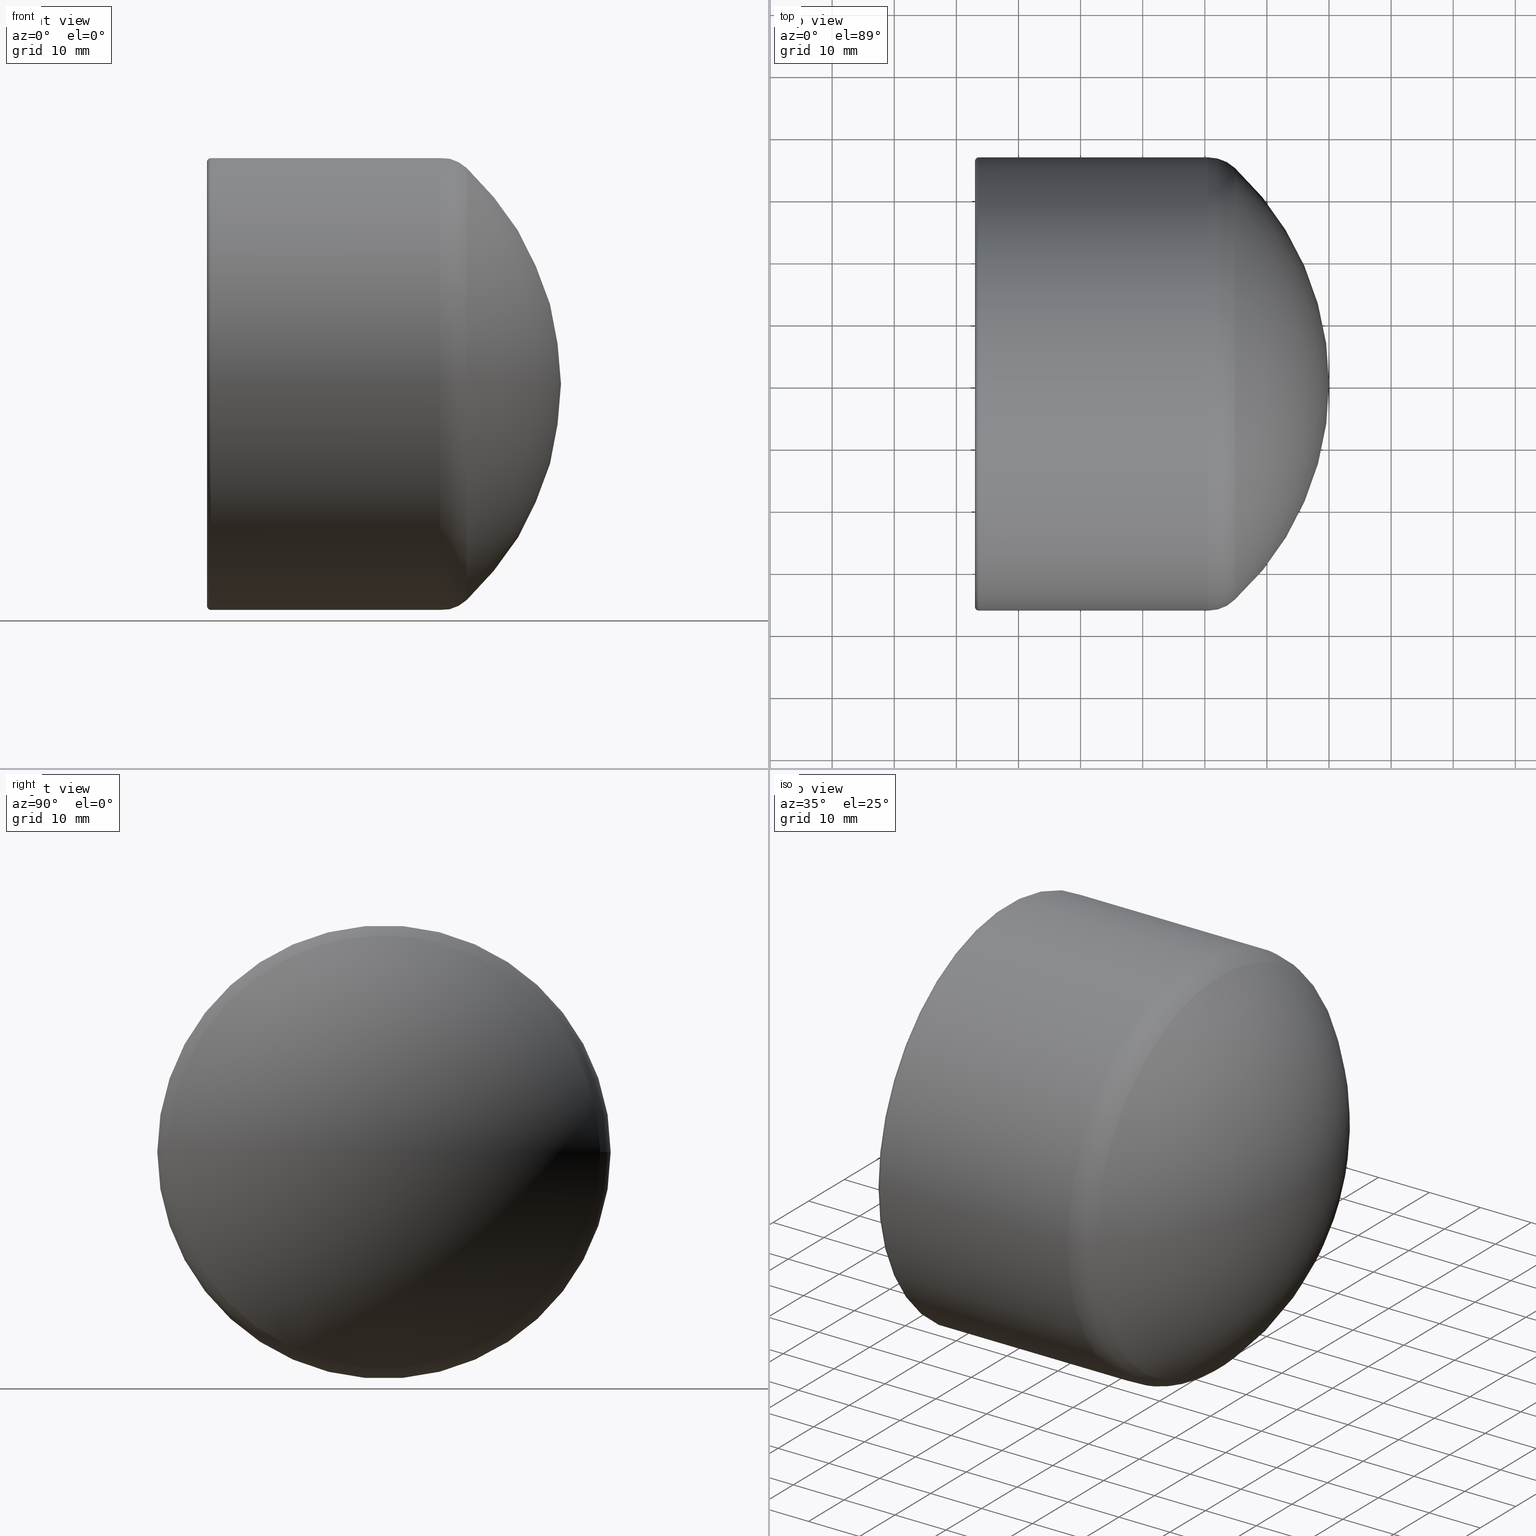
[diagram: canonical four-view strip — front | top / right | iso, engineering-drawing reading convention]
A machine part, canonical four-view strip (front | top / right | iso — engineering-drawing reading convention). The complete STEP part file that produces these views, byte-faithful:
ISO-10303-21;
HEADER;
/* Generated by software containing ST-Developer
 * from STEP Tools, Inc. (www.steptools.com) 
 */

FILE_DESCRIPTION(
/* description */ ('PLASSON CAP-CEMENT PVC 63'),
/* implementation_level */ '2;1');

FILE_NAME(
/* name */ 
'C:\\Dropbox\\KIMPROJECTS-Inventor\\99-16-3568-Processing\\PVC Catalog
 2017\\050700\\050700063.ipt.stp',
/* time_stamp */ '2017-12-07T15:56:56+02:00',
/* author */ ('KIM'),
/* organization */ (''),
/* preprocessor_version */ 'ST-DEVELOPER v15.6',
/* originating_system */ 'Autodesk Inventor 2015',
/* authorisation */ '');

FILE_SCHEMA (('AUTOMOTIVE_DESIGN { 1 0 10303 214 3 1 1 }'));
ENDSEC;

DATA;
#10=MECHANICAL_DESIGN_GEOMETRIC_PRESENTATION_REPRESENTATION('',(#13),#189);
#11=SHAPE_REPRESENTATION_RELATIONSHIP('SRR','None',#198,#12);
#12=ADVANCED_BREP_SHAPE_REPRESENTATION($,(#14),#188);
#13=STYLED_ITEM('',(#207),#14);
#14=MANIFOLD_SOLID_BREP('Solid1',#105);
#15=PLANE('',#116);
#16=PLANE('',#123);
#17=SPHERICAL_SURFACE('',#112,47.5046783625731);
#18=SPHERICAL_SURFACE('',#121,40.2024773932372);
#19=CYLINDRICAL_SURFACE('',#110,36.5);
#20=CYLINDRICAL_SURFACE('',#118,31.5);
#21=FACE_BOUND('',#38,.T.);
#22=FACE_BOUND('',#40,.T.);
#23=FACE_BOUND('',#43,.T.);
#24=FACE_BOUND('',#45,.T.);
#25=FACE_BOUND('',#47,.T.);
#26=FACE_BOUND('',#49,.T.);
#27=FACE_BOUND('',#52,.T.);
#28=FACE_OUTER_BOUND('',#37,.T.);
#29=FACE_OUTER_BOUND('',#39,.T.);
#30=FACE_OUTER_BOUND('',#41,.T.);
#31=FACE_OUTER_BOUND('',#42,.T.);
#32=FACE_OUTER_BOUND('',#44,.T.);
#33=FACE_OUTER_BOUND('',#46,.T.);
#34=FACE_OUTER_BOUND('',#48,.T.);
#35=FACE_OUTER_BOUND('',#50,.T.);
#36=FACE_OUTER_BOUND('',#51,.T.);
#37=EDGE_LOOP('',(#77));
#38=EDGE_LOOP('',(#78));
#39=EDGE_LOOP('',(#79));
#40=EDGE_LOOP('',(#80));
#41=EDGE_LOOP('',(#81));
#42=EDGE_LOOP('',(#82));
#43=EDGE_LOOP('',(#83));
#44=EDGE_LOOP('',(#84));
#45=EDGE_LOOP('',(#85));
#46=EDGE_LOOP('',(#86));
#47=EDGE_LOOP('',(#87));
#48=EDGE_LOOP('',(#88));
#49=EDGE_LOOP('',(#89));
#50=EDGE_LOOP('',(#90));
#51=EDGE_LOOP('',(#91));
#52=EDGE_LOOP('',(#92));
#53=CIRCLE('',#108,36.5);
#54=CIRCLE('',#109,34.8174368435992);
#55=CIRCLE('',#111,36.5);
#56=CIRCLE('',#114,31.5);
#57=CIRCLE('',#115,32.13);
#58=CIRCLE('',#117,35.87);
#59=CIRCLE('',#119,31.5);
#60=CIRCLE('',#122,28.35);
#61=VERTEX_POINT('',#162);
#62=VERTEX_POINT('',#164);
#63=VERTEX_POINT('',#167);
#64=VERTEX_POINT('',#171);
#65=VERTEX_POINT('',#173);
#66=VERTEX_POINT('',#176);
#67=VERTEX_POINT('',#179);
#68=VERTEX_POINT('',#183);
#69=EDGE_CURVE('',#61,#61,#53,.T.);
#70=EDGE_CURVE('',#62,#62,#54,.T.);
#71=EDGE_CURVE('',#63,#63,#55,.T.);
#72=EDGE_CURVE('',#64,#64,#56,.T.);
#73=EDGE_CURVE('',#65,#65,#57,.T.);
#74=EDGE_CURVE('',#66,#66,#58,.T.);
#75=EDGE_CURVE('',#67,#67,#59,.T.);
#76=EDGE_CURVE('',#68,#68,#60,.T.);
#77=ORIENTED_EDGE('',*,*,#69,.T.);
#78=ORIENTED_EDGE('',*,*,#70,.T.);
#79=ORIENTED_EDGE('',*,*,#71,.F.);
#80=ORIENTED_EDGE('',*,*,#69,.F.);
#81=ORIENTED_EDGE('',*,*,#70,.F.);
#82=ORIENTED_EDGE('',*,*,#72,.T.);
#83=ORIENTED_EDGE('',*,*,#73,.T.);
#84=ORIENTED_EDGE('',*,*,#74,.F.);
#85=ORIENTED_EDGE('',*,*,#73,.F.);
#86=ORIENTED_EDGE('',*,*,#75,.T.);
#87=ORIENTED_EDGE('',*,*,#72,.F.);
#88=ORIENTED_EDGE('',*,*,#74,.T.);
#89=ORIENTED_EDGE('',*,*,#71,.T.);
#90=ORIENTED_EDGE('',*,*,#76,.F.);
#91=ORIENTED_EDGE('',*,*,#75,.F.);
#92=ORIENTED_EDGE('',*,*,#76,.T.);
#93=TOROIDAL_SURFACE('',#107,30.2,6.3);
#94=TOROIDAL_SURFACE('',#113,32.13,0.63);
#95=TOROIDAL_SURFACE('',#120,35.87,0.63);
#96=ADVANCED_FACE('',(#28,#21),#93,.T.);
#97=ADVANCED_FACE('',(#29,#22),#19,.T.);
#98=ADVANCED_FACE('',(#30),#17,.T.);
#99=ADVANCED_FACE('',(#31,#23),#94,.T.);
#100=ADVANCED_FACE('',(#32,#24),#15,.T.);
#101=ADVANCED_FACE('',(#33,#25),#20,.F.);
#102=ADVANCED_FACE('',(#34,#26),#95,.T.);
#103=ADVANCED_FACE('',(#35),#18,.F.);
#104=ADVANCED_FACE('',(#36,#27),#16,.T.);
#105=CLOSED_SHELL('',(#96,#97,#98,#99,#100,#101,#102,#103,#104));
#106=AXIS2_PLACEMENT_3D('placement',#160,#124,#125);
#107=AXIS2_PLACEMENT_3D('',#161,#126,#127);
#108=AXIS2_PLACEMENT_3D('',#163,#128,#129);
#109=AXIS2_PLACEMENT_3D('',#165,#130,#131);
#110=AXIS2_PLACEMENT_3D('',#166,#132,#133);
#111=AXIS2_PLACEMENT_3D('',#168,#134,#135);
#112=AXIS2_PLACEMENT_3D('',#169,#136,#137);
#113=AXIS2_PLACEMENT_3D('',#170,#138,#139);
#114=AXIS2_PLACEMENT_3D('',#172,#140,#141);
#115=AXIS2_PLACEMENT_3D('',#174,#142,#143);
#116=AXIS2_PLACEMENT_3D('',#175,#144,#145);
#117=AXIS2_PLACEMENT_3D('',#177,#146,#147);
#118=AXIS2_PLACEMENT_3D('',#178,#148,#149);
#119=AXIS2_PLACEMENT_3D('',#180,#150,#151);
#120=AXIS2_PLACEMENT_3D('',#181,#152,#153);
#121=AXIS2_PLACEMENT_3D('',#182,#154,#155);
#122=AXIS2_PLACEMENT_3D('',#184,#156,#157);
#123=AXIS2_PLACEMENT_3D('',#185,#158,#159);
#124=DIRECTION('axis',(0.,0.,1.));
#125=DIRECTION('refdir',(1.,0.,0.));
#126=DIRECTION('center_axis',(1.,1.2277497043788E-16,0.));
#127=DIRECTION('ref_axis',(0.,0.,-1.));
#128=DIRECTION('center_axis',(1.,1.2277497043788E-16,0.));
#129=DIRECTION('ref_axis',(1.2166827667125E-16,-1.,1.83697019872103E-16));
#130=DIRECTION('center_axis',(-1.,-1.2277497043788E-16,0.));
#131=DIRECTION('ref_axis',(1.2166827667125E-16,-1.,1.83697019872103E-16));
#132=DIRECTION('center_axis',(1.,1.2277497043788E-16,0.));
#133=DIRECTION('ref_axis',(-1.2166827667125E-16,1.,0.));
#134=DIRECTION('center_axis',(-1.,-1.2277497043788E-16,0.));
#135=DIRECTION('ref_axis',(1.2166827667125E-16,-1.,1.83697019872103E-16));
#136=DIRECTION('center_axis',(0.,0.,1.));
#137=DIRECTION('ref_axis',(1.,0.,0.));
#138=DIRECTION('center_axis',(1.,1.2277497043788E-16,0.));
#139=DIRECTION('ref_axis',(0.,0.,-1.));
#140=DIRECTION('center_axis',(1.,1.2277497043788E-16,0.));
#141=DIRECTION('ref_axis',(1.2335811384724E-16,-1.,1.83697019872103E-16));
#142=DIRECTION('center_axis',(-1.,-1.2277497043788E-16,0.));
#143=DIRECTION('ref_axis',(1.2277497043788E-16,-1.,1.83697019872103E-16));
#144=DIRECTION('center_axis',(-1.,-1.2277497043788E-16,0.));
#145=DIRECTION('ref_axis',(0.,0.,1.));
#146=DIRECTION('center_axis',(1.,1.2277497043788E-16,0.));
#147=DIRECTION('ref_axis',(1.2277497043788E-16,-1.,1.83697019872103E-16));
#148=DIRECTION('center_axis',(1.,1.2277497043788E-16,0.));
#149=DIRECTION('ref_axis',(-1.2166827667125E-16,1.,0.));
#150=DIRECTION('center_axis',(1.,1.2277497043788E-16,0.));
#151=DIRECTION('ref_axis',(0.,0.,-1.));
#152=DIRECTION('center_axis',(1.,1.2277497043788E-16,0.));
#153=DIRECTION('ref_axis',(0.,0.,-1.));
#154=DIRECTION('center_axis',(0.,0.,1.));
#155=DIRECTION('ref_axis',(1.,0.,0.));
#156=DIRECTION('center_axis',(1.,1.2277497043788E-16,0.));
#157=DIRECTION('ref_axis',(0.,0.,-1.));
#158=DIRECTION('center_axis',(-1.,-1.2277497043788E-16,0.));
#159=DIRECTION('ref_axis',(0.,0.,1.));
#160=CARTESIAN_POINT('',(0.,0.,0.));
#161=CARTESIAN_POINT('Origin',(-19.4728122284196,-2.3907739456866E-15,0.));
#162=CARTESIAN_POINT('',(-19.4728122284196,36.5,-2.23498040844392E-15));
#163=CARTESIAN_POINT('Origin',(-19.4728122284196,-2.3907739456866E-15,0.));
#164=CARTESIAN_POINT('',(-15.1868727753507,34.8174368435992,-1.06597656462572E-14));
#165=CARTESIAN_POINT('Origin',(-15.1868727753507,-1.86682157061912E-15,
0.));
#166=CARTESIAN_POINT('Origin',(-37.05,-4.54881265472344E-15,0.));
#167=CARTESIAN_POINT('',(-56.37,36.5,-1.11749020422196E-14));
#168=CARTESIAN_POINT('Origin',(-56.37,-6.92082508358327E-15,0.));
#169=CARTESIAN_POINT('Origin',(-47.5046783625731,-5.81764523012497E-15,
0.));
#170=CARTESIAN_POINT('Origin',(-56.37,-6.92082508358327E-15,0.));
#171=CARTESIAN_POINT('',(-56.37,31.5,-1.92881870865708E-15));
#172=CARTESIAN_POINT('Origin',(-56.37,-6.92082508358327E-15,0.));
#173=CARTESIAN_POINT('',(-57.,32.13,-9.83697541415112E-15));
#174=CARTESIAN_POINT('Origin',(-57.,-6.99817331495913E-15,0.));
#175=CARTESIAN_POINT('Origin',(-57.,36.5,0.));
#176=CARTESIAN_POINT('',(-57.,35.87,-2.19640403427078E-15));
#177=CARTESIAN_POINT('Origin',(-57.,-6.99817331495913E-15,0.));
#178=CARTESIAN_POINT('Origin',(-38.,-4.66544887663942E-15,0.));
#179=CARTESIAN_POINT('',(-19.,31.5,0.));
#180=CARTESIAN_POINT('Origin',(-19.,-2.33272443831971E-15,0.));
#181=CARTESIAN_POINT('Origin',(-56.37,-6.92082508358327E-15,0.));
#182=CARTESIAN_POINT('Origin',(-47.5046783625731,-5.81764523012497E-15,
0.));
#183=CARTESIAN_POINT('',(-19.,28.35,0.));
#184=CARTESIAN_POINT('Origin',(-19.,-2.33272443831971E-15,0.));
#185=CARTESIAN_POINT('Origin',(-19.,31.5,0.));
#186=UNCERTAINTY_MEASURE_WITH_UNIT(LENGTH_MEASURE(0.01),#190,
'DISTANCE_ACCURACY_VALUE',
'Maximum model space distance between geometric entities at asserted c
onnectivities');
#187=UNCERTAINTY_MEASURE_WITH_UNIT(LENGTH_MEASURE(1.E-6),#190,
'DISTANCE_ACCURACY_VALUE',
'Maximum model space distance between geometric entities at asserted c
onnectivities');
#188=(
GEOMETRIC_REPRESENTATION_CONTEXT(3)
GLOBAL_UNCERTAINTY_ASSIGNED_CONTEXT((#186))
GLOBAL_UNIT_ASSIGNED_CONTEXT((#190,#193,#191))
REPRESENTATION_CONTEXT('','3D')
);
#189=(
GEOMETRIC_REPRESENTATION_CONTEXT(3)
GLOBAL_UNCERTAINTY_ASSIGNED_CONTEXT((#187))
GLOBAL_UNIT_ASSIGNED_CONTEXT((#190,#193,#191))
REPRESENTATION_CONTEXT('','3D')
);
#190=(
LENGTH_UNIT()
NAMED_UNIT(*)
SI_UNIT(.MILLI.,.METRE.)
);
#191=(
NAMED_UNIT(*)
SI_UNIT($,.STERADIAN.)
SOLID_ANGLE_UNIT()
);
#192=DIMENSIONAL_EXPONENTS(0.,0.,0.,0.,0.,0.,0.);
#193=(
CONVERSION_BASED_UNIT('degree',#195)
NAMED_UNIT(#192)
PLANE_ANGLE_UNIT()
);
#194=(
NAMED_UNIT(*)
PLANE_ANGLE_UNIT()
SI_UNIT($,.RADIAN.)
);
#195=PLANE_ANGLE_MEASURE_WITH_UNIT(PLANE_ANGLE_MEASURE(0.01745329252),#194);
#196=SHAPE_DEFINITION_REPRESENTATION(#197,#198);
#197=PRODUCT_DEFINITION_SHAPE('',$,#200);
#198=SHAPE_REPRESENTATION('',(#106),#188);
#199=PRODUCT_DEFINITION_CONTEXT('part definition',#204,'design');
#200=PRODUCT_DEFINITION('050700063','050700063',#201,#199);
#201=PRODUCT_DEFINITION_FORMATION('',$,#206);
#202=PRODUCT_RELATED_PRODUCT_CATEGORY('050700063','050700063',(#206));
#203=APPLICATION_PROTOCOL_DEFINITION('international standard',
'automotive_design',2009,#204);
#204=APPLICATION_CONTEXT(
'Core Data for Automotive Mechanical Design Process');
#205=PRODUCT_CONTEXT('part definition',#204,'mechanical');
#206=PRODUCT('050700063','050700063',$,(#205));
#207=PRESENTATION_STYLE_ASSIGNMENT((#208));
#208=SURFACE_STYLE_USAGE(.BOTH.,#209);
#209=SURFACE_SIDE_STYLE($,(#210));
#210=SURFACE_STYLE_FILL_AREA(#211);
#211=FILL_AREA_STYLE($,(#212));
#212=FILL_AREA_STYLE_COLOUR($,#213);
#213=COLOUR_RGB('',0.749019607843137,0.749019607843137,0.749019607843137);
ENDSEC;
END-ISO-10303-21;
